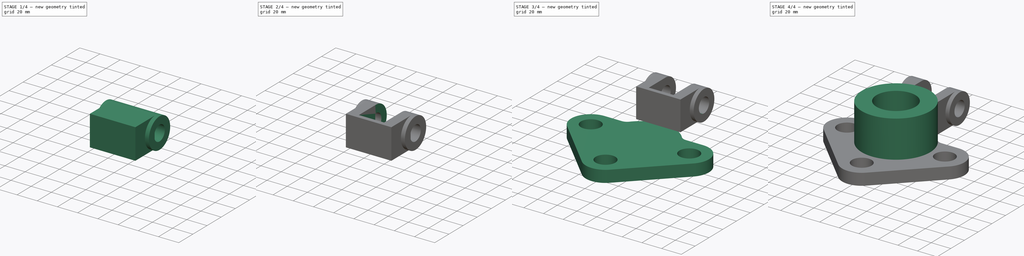
[diagram: build sequence overview — one tinted view per stage of 4, left to right]
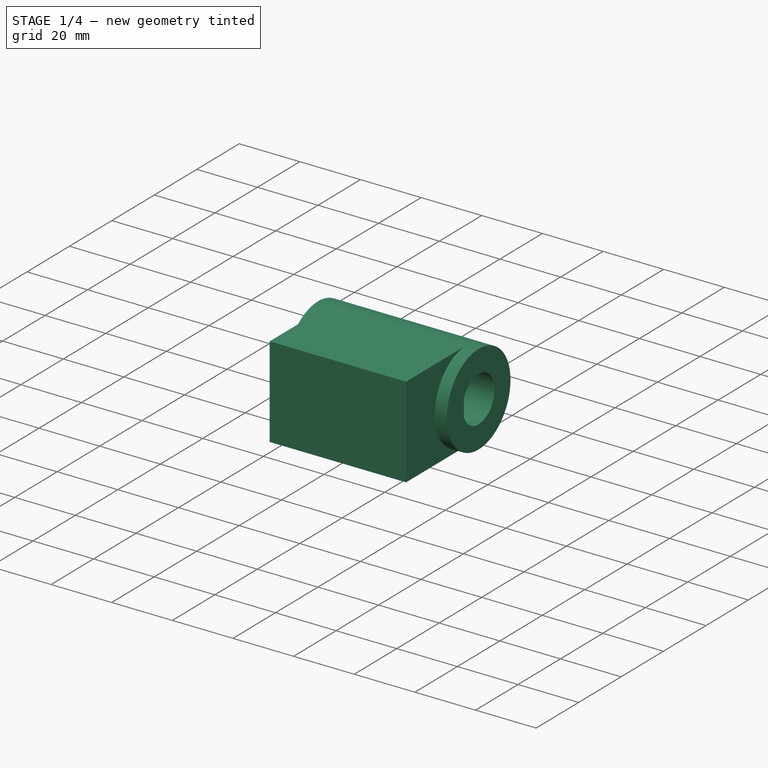
[diagram: stage 1 of 4 — iso view after this stage's code; geometry added in this stage tinted green]
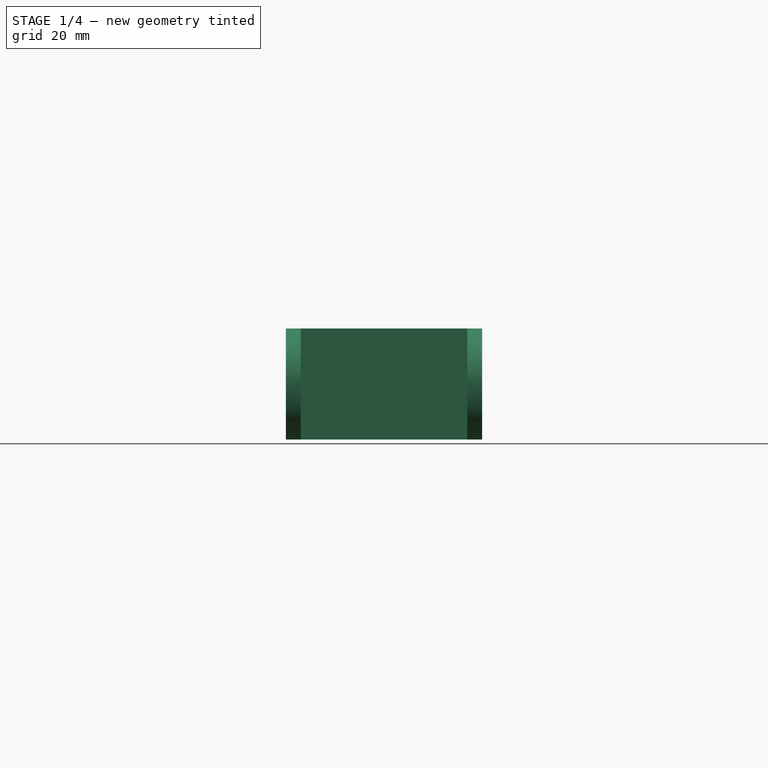
[diagram: stage 1 of 4 — front view after this stage's code; geometry added in this stage tinted green]
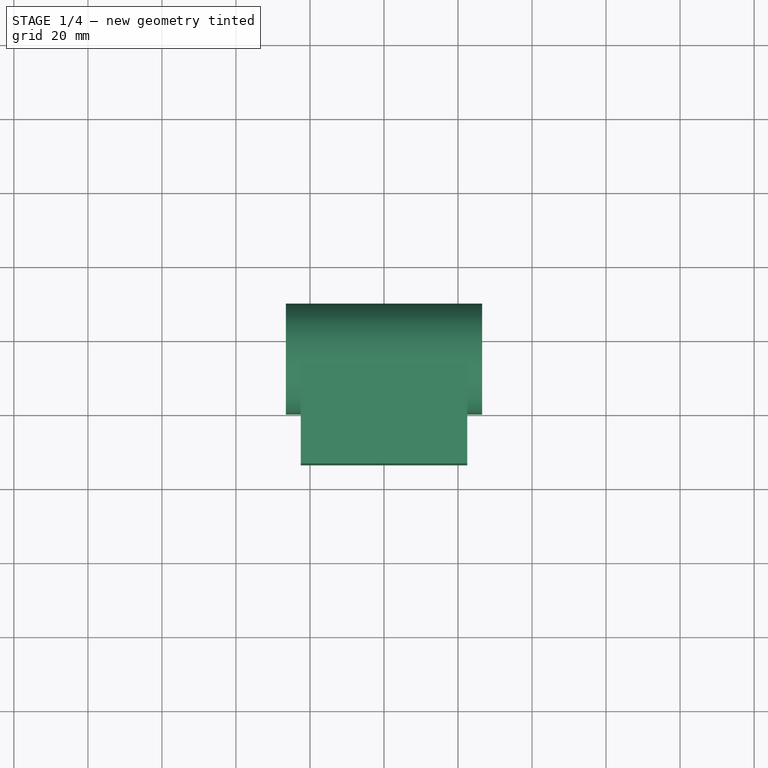
[diagram: stage 1 of 4 — top view after this stage's code; geometry added in this stage tinted green]
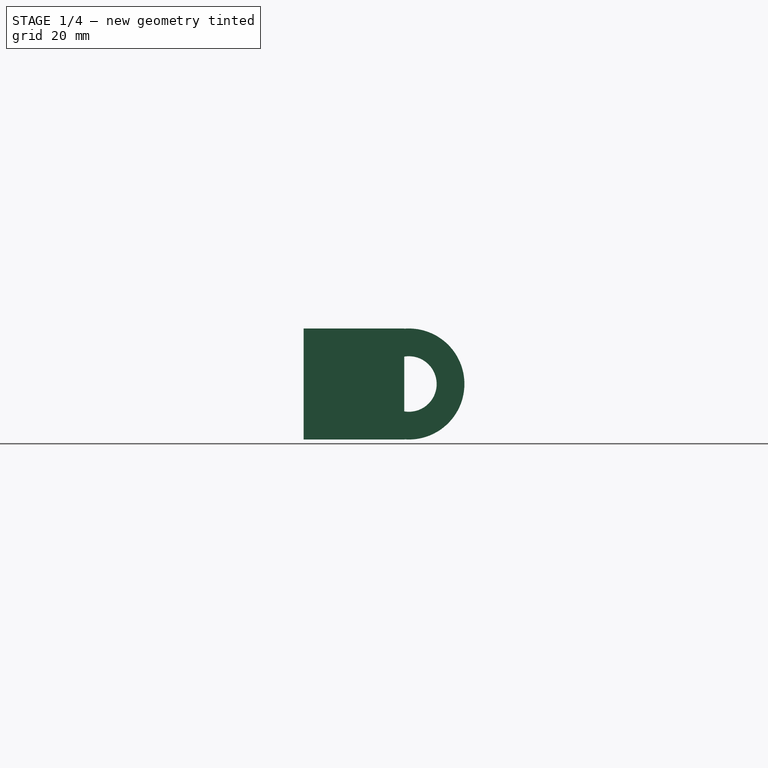
[diagram: stage 1 of 4 — right view after this stage's code; geometry added in this stage tinted green]
FCSTD DOCUMENT  (FreeCAD 0.16R6700 (Git))
Label: ejer8-2
License: All rights reserved
LicenseURL: http://en.wikipedia.org/wiki/All_rights_reserved
objects: Sketcher::SketchObject×8, PartDesign::Pad×5, PartDesign::Pocket×3, Part::MultiFuse×2, Part::Cut×1, Part::Feature×1
note: 28 computed .brp shape members not serialized (recipe doc carries the construction recipe); baked Part::Feature solids carry a one-line shape summary decoded from their .brp

FEATURE [Sketcher::SketchObject] Sketch003
  Placement = pos=(0,0,0) rot=(0.57735,0.57735,0.57735;2.0944rad)
  sketch-geometry (1):
    g0: Circle CenterX=55 CenterY=0 CenterZ=0 NormalX=0 NormalY=0 NormalZ=1 Radius=15
  constraints (3):
    c: PointOnObject(g0,g-1)
    c: DistanceX(g-1,g0) = 55
    c: Radius(g0) = 15
FEATURE [PartDesign::Pad] Pad002
  Length = 53
  Length2 = 100
  Midplane = true
  Placement = pos=(0,0,0) rot=(0.57735,0.57735,0.57735;2.0944rad)
  Sketch = -> Sketch003
  Type = 0
FEATURE [Sketcher::SketchObject] Sketch004
  Placement = pos=(0,0,0) rot=(0.57735,0.57735,0.57735;2.0944rad)
  sketch-geometry (4):
    g0: LineSegment StartX=53.7533 StartY=15 StartZ=0 EndX=26.5432 EndY=15 EndZ=0
    g1: LineSegment StartX=26.5432 StartY=15 StartZ=0 EndX=26.5432 EndY=-15 EndZ=0
    g2: LineSegment StartX=26.5432 StartY=-15 StartZ=0 EndX=53.7533 EndY=-15 EndZ=0
    g3: LineSegment StartX=53.7533 StartY=-15 StartZ=0 EndX=53.7533 EndY=15 EndZ=0
  constraints (10):
    c: Coincident(g0,g1)
    c: Coincident(g1,g2)
    c: Coincident(g2,g3)
    c: Coincident(g3,g0)
    c: Horizontal(g0)
    c: Horizontal(g2)
    c: Vertical(g1)
    c: Vertical(g3)
    c: Symmetric(g0,g1,g-1)
    c: DistanceY(g1,g1) = 30
FEATURE [PartDesign::Pad] Pad003
  Length = 45
  Length2 = 100
  Midplane = true
  Placement = pos=(0,0,0) rot=(0.57735,0.57735,0.57735;2.0944rad)
  Sketch = -> Sketch004
  Type = 0
FEATURE [Sketcher::SketchObject] Sketch005
  Placement = pos=(26.5,0,0) rot=(0.57735,0.57735,0.57735;2.0944rad)
  Support = -> Pad002 [Face3]
  sketch-geometry (1):
    g0: Circle CenterX=55 CenterY=0 CenterZ=0 NormalX=0 NormalY=0 NormalZ=1 Radius=7.5
  constraints (3):
    c: PointOnObject(g0,g-1)
    c: DistanceX(g-1,g0) = 55
    c: Radius(g0) = 7.5
FEATURE [PartDesign::Pocket] Pocket001
  Length = 5
  Placement = pos=(0,0,0) rot=(0.57735,0.57735,0.57735;2.0944rad)
  Sketch = -> Sketch005
  Type = 1
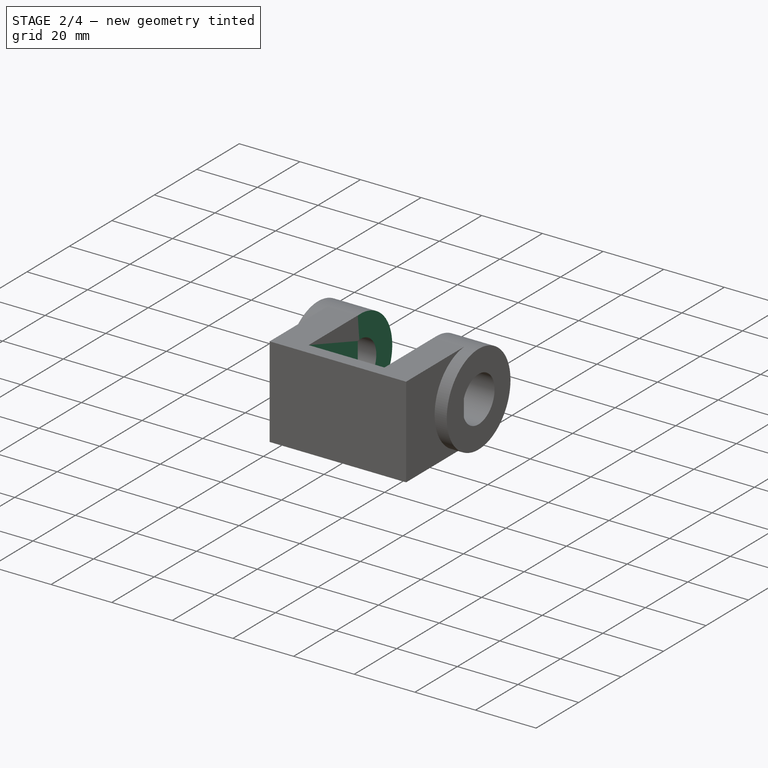
[diagram: stage 2 of 4 — iso view after this stage's code; geometry added in this stage tinted green]
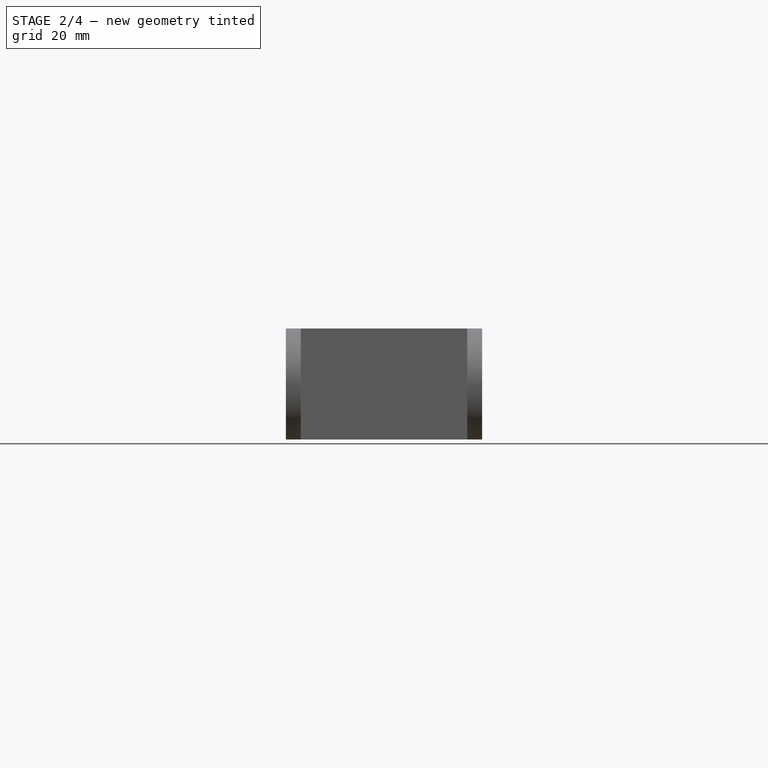
[diagram: stage 2 of 4 — front view after this stage's code; geometry added in this stage tinted green]
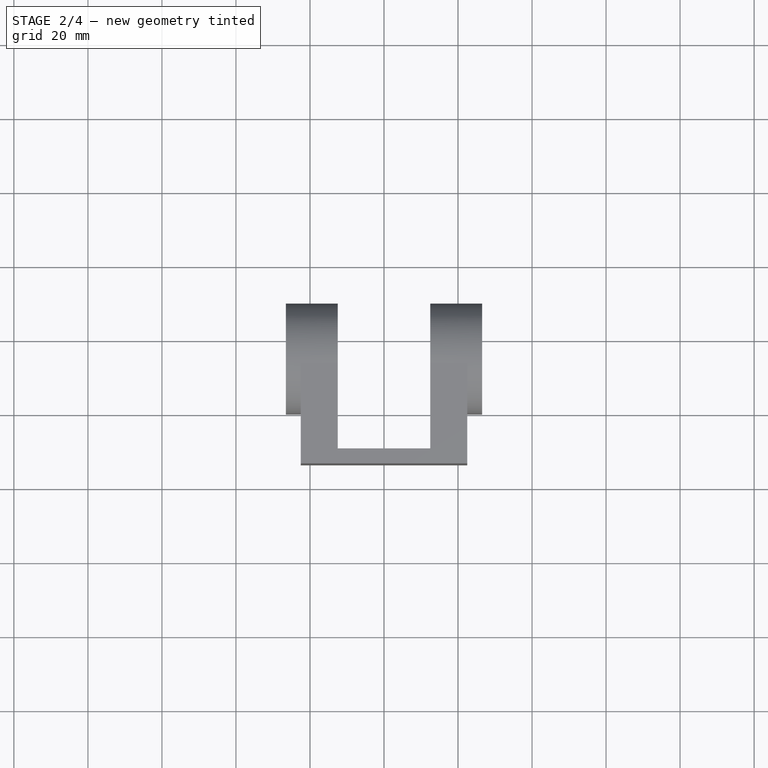
[diagram: stage 2 of 4 — top view after this stage's code; geometry added in this stage tinted green]
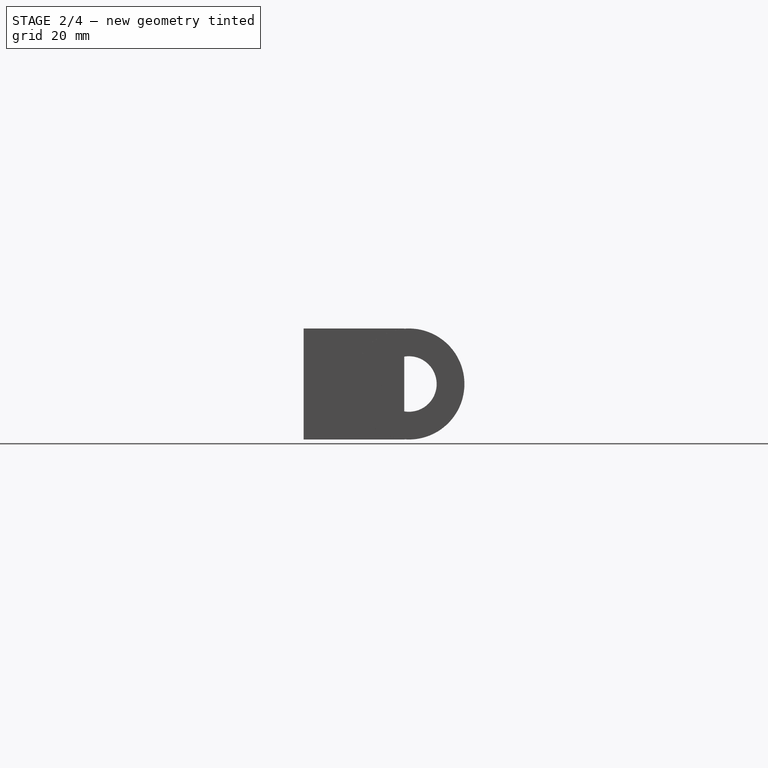
[diagram: stage 2 of 4 — right view after this stage's code; geometry added in this stage tinted green]
FEATURE [Sketcher::SketchObject] Sketch006
  sketch-geometry (4):
    g0: LineSegment StartX=-12.5 StartY=82.113 StartZ=0 EndX=12.5 EndY=82.113 EndZ=0
    g1: LineSegment StartX=12.5 StartY=82.113 StartZ=0 EndX=12.5 EndY=30.6272 EndZ=0
    g2: LineSegment StartX=12.5 StartY=30.6272 StartZ=0 EndX=-12.5 EndY=30.6272 EndZ=0
    g3: LineSegment StartX=-12.5 StartY=30.6272 StartZ=0 EndX=-12.5 EndY=82.113 EndZ=0
  constraints (10):
    c: Coincident(g0,g1)
    c: Coincident(g1,g2)
    c: Coincident(g2,g3)
    c: Coincident(g3,g0)
    c: Horizontal(g0)
    c: Horizontal(g2)
    c: Vertical(g1)
    c: Vertical(g3)
    c: Symmetric(g0,g0,g-2)
    c: DistanceX(g0,g0) = 25
FEATURE [PartDesign::Pad] Pad004
  Length = 50
  Length2 = 100
  Midplane = true
  Sketch = -> Sketch006
  Type = 0
FEATURE [Part::MultiFuse] Fusion
  Shapes = -> [Pad003,Pocket001]
FEATURE [Part::Cut] Cut
  Base = -> Fusion
  Tool = -> Pad004
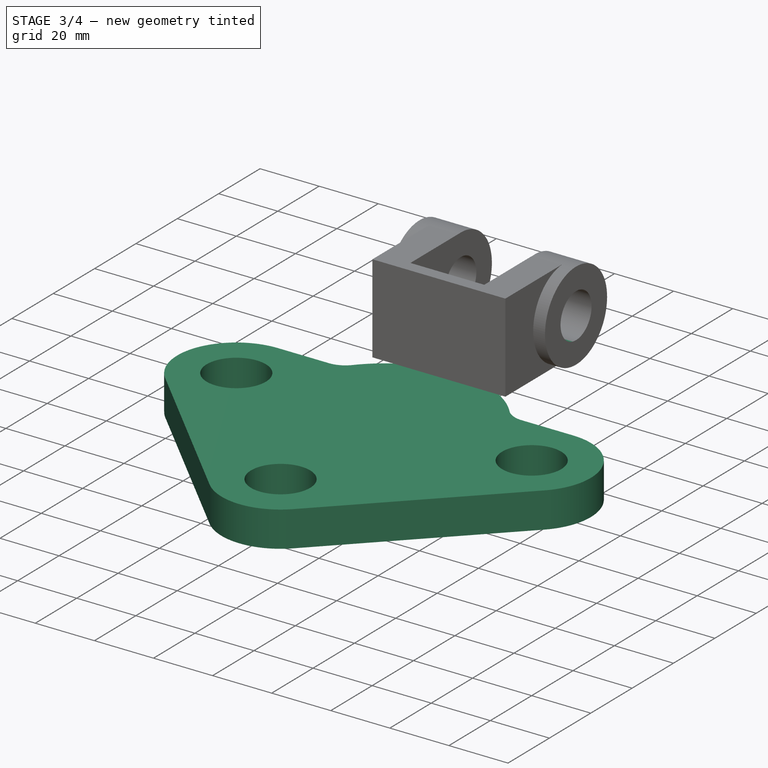
[diagram: stage 3 of 4 — iso view after this stage's code; geometry added in this stage tinted green]
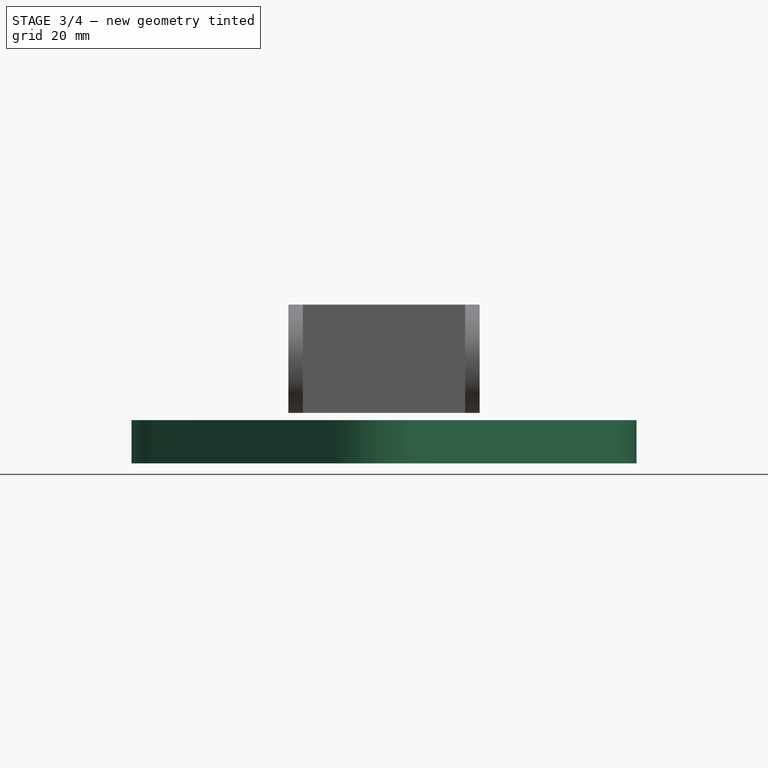
[diagram: stage 3 of 4 — front view after this stage's code; geometry added in this stage tinted green]
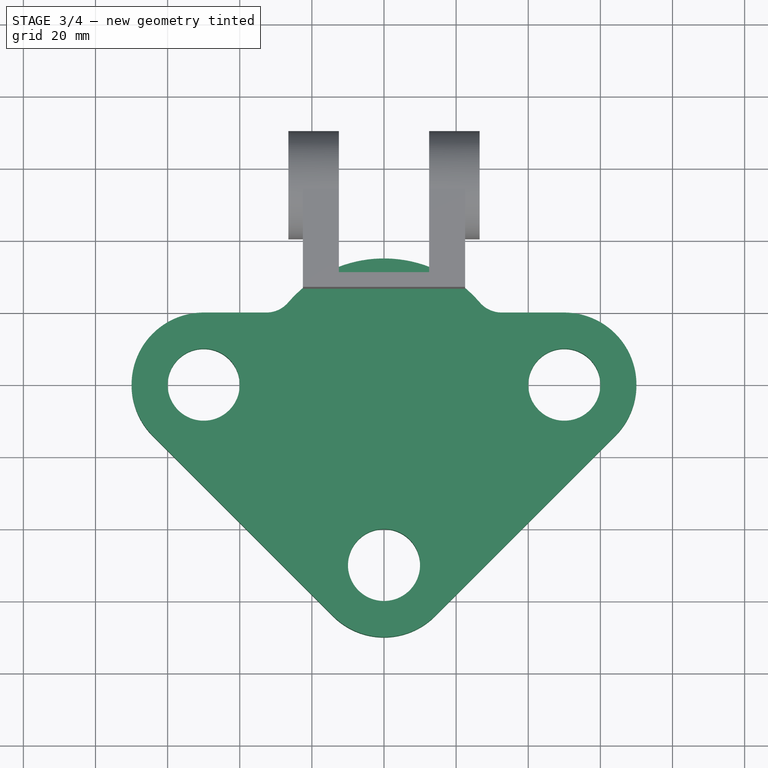
[diagram: stage 3 of 4 — top view after this stage's code; geometry added in this stage tinted green]
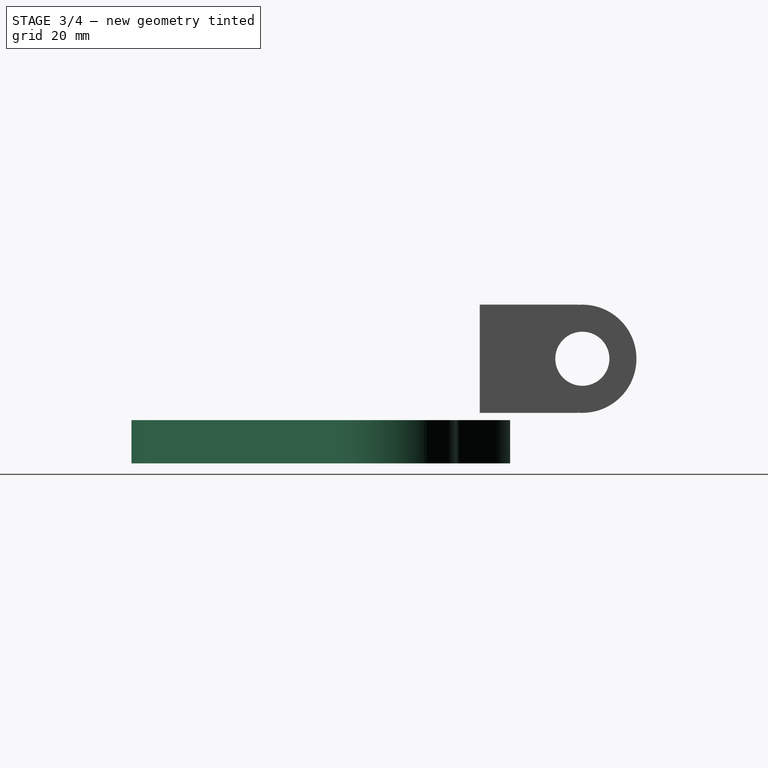
[diagram: stage 3 of 4 — right view after this stage's code; geometry added in this stage tinted green]
FEATURE [Sketcher::SketchObject] Sketch
  Placement = pos=(0,0,-17) rot=(0,0,1;0rad)
  sketch-geometry (13):
    g0: ArcOfCircle CenterX=0 CenterY=0 CenterZ=0 NormalX=0 NormalY=0 NormalZ=1 Radius=35 StartAngle=0.709116 EndAngle=2.43248
    g1: ArcOfCircle CenterX=-50 CenterY=8.65699e-06 CenterZ=0 NormalX=0 NormalY=0 NormalZ=1 Radius=20 StartAngle=1.5708 EndAngle=3.92699
    g2: ArcOfCircle CenterX=50 CenterY=5.96775e-06 CenterZ=0 NormalX=0 NormalY=0 NormalZ=1 Radius=20 StartAngle=5.49779 EndAngle=7.85398
    g3: ArcOfCircle CenterX=0 CenterY=-50 CenterZ=0 NormalX=0 NormalY=0 NormalZ=1 Radius=20 StartAngle=3.92699 EndAngle=5.49779
    g4: Circle CenterX=-50 CenterY=8.65699e-06 CenterZ=0 NormalX=0 NormalY=0 NormalZ=1 Radius=10
    g5: Circle CenterX=50 CenterY=5.96775e-06 CenterZ=0 NormalX=0 NormalY=0 NormalZ=1 Radius=10
    g6: Circle CenterX=0 CenterY=-50 CenterZ=0 NormalX=0 NormalY=0 NormalZ=1 Radius=10
    g7: LineSegment StartX=-64.1421 StartY=-14.1421 StartZ=0 EndX=-14.1421 EndY=-64.1421 EndZ=0
    g8: LineSegment StartX=14.1421 StartY=-64.1421 StartZ=0 EndX=64.1422 EndY=-14.1421 EndZ=0
    g9: LineSegment StartX=50 StartY=20 StartZ=0 EndX=32.6343 EndY=20 EndZ=0
    g10: ArcOfCircle CenterX=-32.6343 CenterY=28 CenterZ=0 NormalX=0 NormalY=0 NormalZ=1 Radius=8 StartAngle=4.71239 EndAngle=5.57407
    g11: ArcOfCircle CenterX=32.6343 CenterY=28 CenterZ=0 NormalX=0 NormalY=0 NormalZ=1 Radius=8 StartAngle=3.85071 EndAngle=4.71239
    g12: LineSegment StartX=-32.6343 StartY=20 StartZ=0 EndX=-50 EndY=20 EndZ=0
  constraints (37):
    c: Coincident(g1,g4)
    c: Coincident(g5,g2)
    c: Coincident(g3,g6)
    c: PointOnObject(g3,g-2)
    c: Radius(g0) = 35
    c: Radius(g5) = 10
    c: Equal(g5,g6)
    c: Equal(g5,g4)
    c: Radius(g1) = 20
    c: Equal(g1,g2)
    c: Equal(g1,g3)
    c: DistanceX(g1,g2) = 100
    c: DistanceY(g3,g-1) = 50
    c: Coincident(g0,g-1)
    c: Horizontal(g9)
    c: Coincident(g2,g8)
    c: Coincident(g3,g8)
    c: Coincident(g1,g7)
    c: Coincident(g1,g12)
    c: Coincident(g2,g9)
    c: Tangent(g1,g7)
    c: Tangent(g3,g7)
    c: Tangent(g3,g8)
    c: Tangent(g8,g2)
    c: Tangent(g2,g9)
    c: Coincident(g0,g11)
    c: Coincident(g9,g11)
    c: Coincident(g0,g10)
    c: Tangent(g12,g10)
    c: Horizontal(g12)
    c: Radius(g10) = 8
    c: Radius(g11) = 8
    c: Tangent(g9,g11)
    c: Tangent(g11,g0)
    c: Tangent(g12,g1)
    c: Tangent(g10,g0)
    c: Coincident(g10,g12)
FEATURE [PartDesign::Pad] Pad
  Length = 12
  Length2 = 100
  Placement = pos=(0,0,-17) rot=(0,0,1;0rad)
  Reversed = true
  Sketch = -> Sketch
  Type = 0
FEATURE [Sketcher::SketchObject] Sketch007
  Placement = pos=(26.5,0,0) rot=(0.57735,0.57735,0.57735;2.0944rad)
  Support = -> Cut [Face20]
  sketch-geometry (1):
    g0: Circle CenterX=55 CenterY=0 CenterZ=0 NormalX=0 NormalY=0 NormalZ=1 Radius=7.5
  constraints (3):
    c: Radius(g0) = 7.5
    c: PointOnObject(g0,g-1)
    c: DistanceX(g-1,g0) = 55
FEATURE [PartDesign::Pocket] Pocket002
  Length = 5
  Sketch = -> Sketch007
  Type = 1
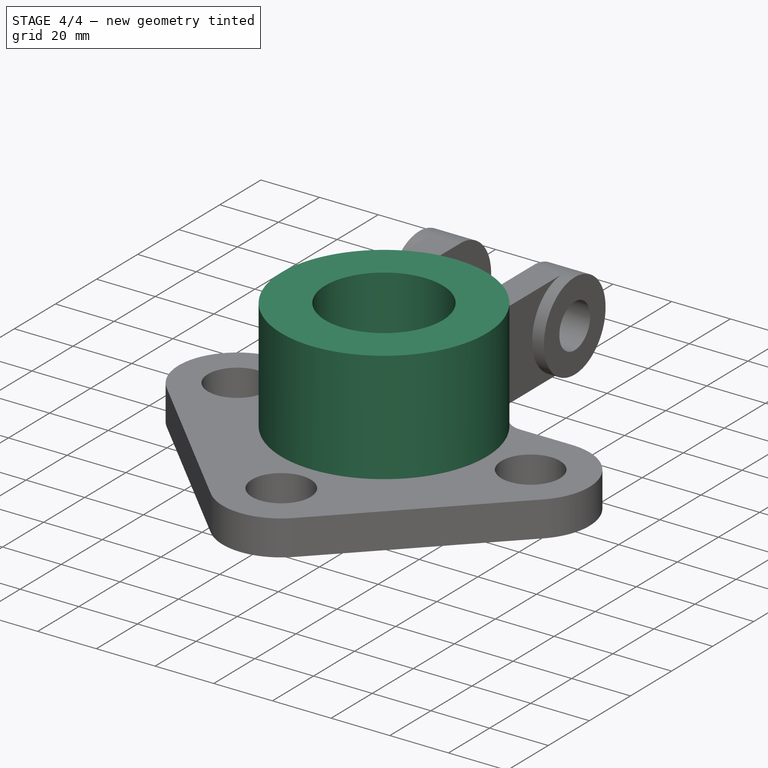
[diagram: stage 4 of 4 — iso view after this stage's code; geometry added in this stage tinted green]
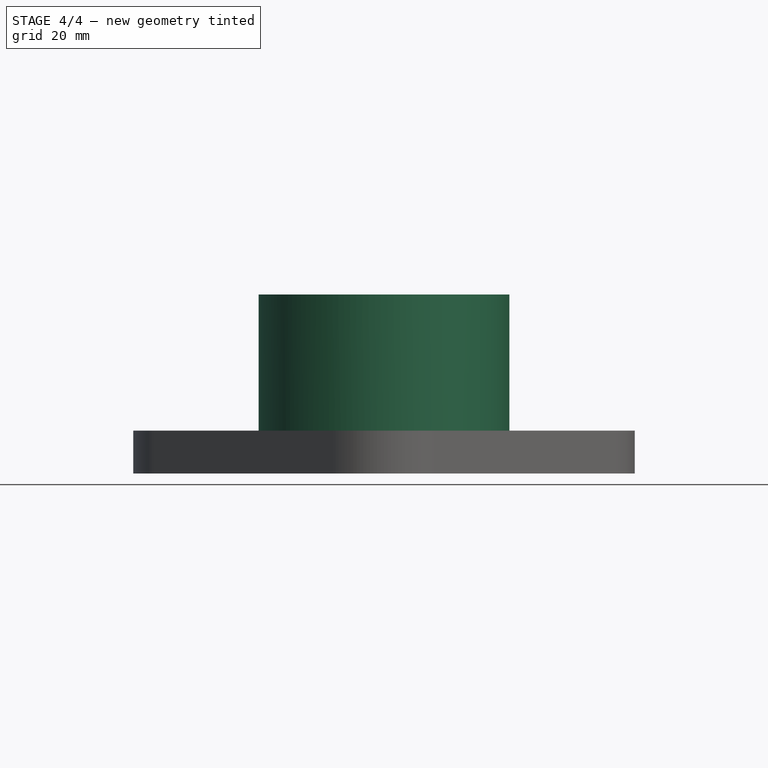
[diagram: stage 4 of 4 — front view after this stage's code; geometry added in this stage tinted green]
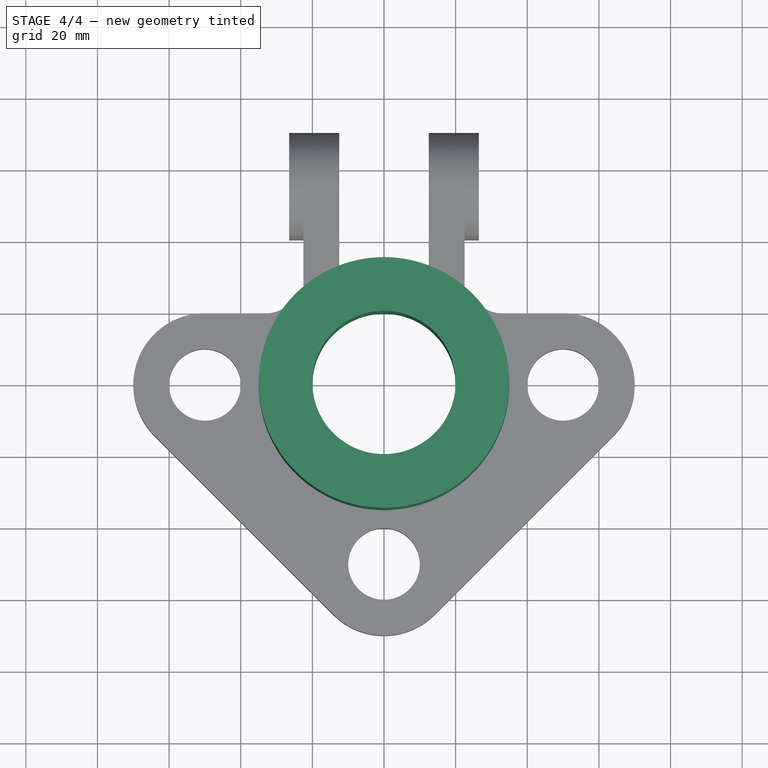
[diagram: stage 4 of 4 — top view after this stage's code; geometry added in this stage tinted green]
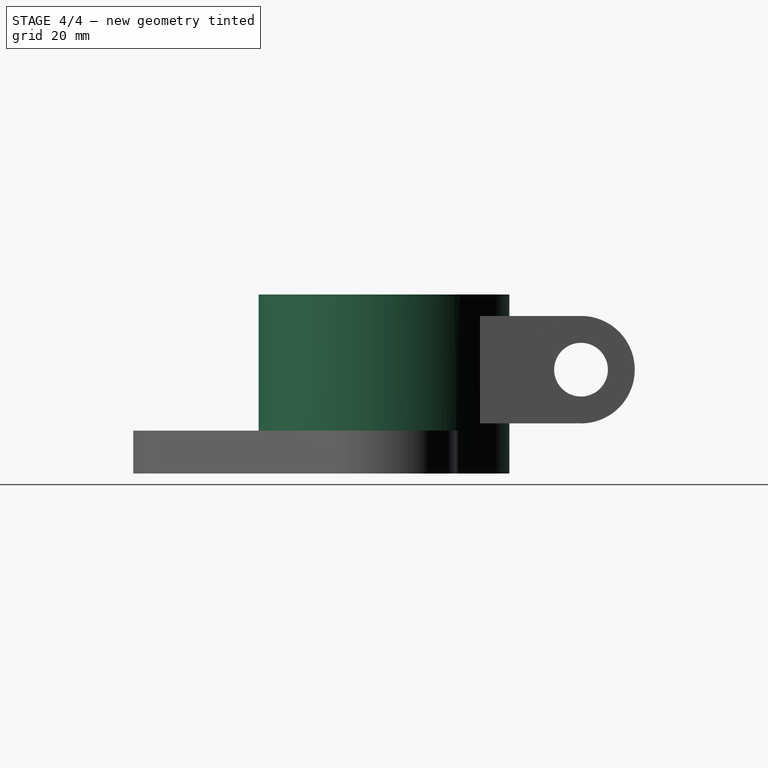
[diagram: stage 4 of 4 — right view after this stage's code; geometry added in this stage tinted green]
FEATURE [Sketcher::SketchObject] Sketch001
  Placement = pos=(0,0,-17) rot=(0,0,1;0rad)
  Support = -> Pad [Face14]
  sketch-geometry (1):
    g0: Circle CenterX=0 CenterY=0 CenterZ=0 NormalX=0 NormalY=0 NormalZ=1 Radius=35
  constraints (2):
    c: Coincident(g0,g-1)
    c: Radius(g0) = 35
FEATURE [PartDesign::Pad] Pad001
  Length = 38
  Length2 = 100
  Placement = pos=(0,0,-17) rot=(0,0,1;0rad)
  Sketch = -> Sketch001
  Type = 0
FEATURE [Sketcher::SketchObject] Sketch002
  Placement = pos=(0,0,21) rot=(0,0,1;0rad)
  Support = -> Pad001 [Face16]
  sketch-geometry (1):
    g0: Circle CenterX=0 CenterY=0 CenterZ=0 NormalX=0 NormalY=0 NormalZ=1 Radius=20
  constraints (2):
    c: Coincident(g0,g-1)
    c: Radius(g0) = 20
FEATURE [PartDesign::Pocket] Pocket
  Length = 5
  Placement = pos=(0,0,-17) rot=(0,0,1;0rad)
  Sketch = -> Sketch002
  Type = 1
FEATURE [Part::MultiFuse] Fusion001
  Shapes = -> [Pocket002,Pocket]
FEATURE [Part::Feature] Fusion001001  label="Fusion002"
  shape: bbox 140 x 140 x 50 mm, 35 faces (baked)
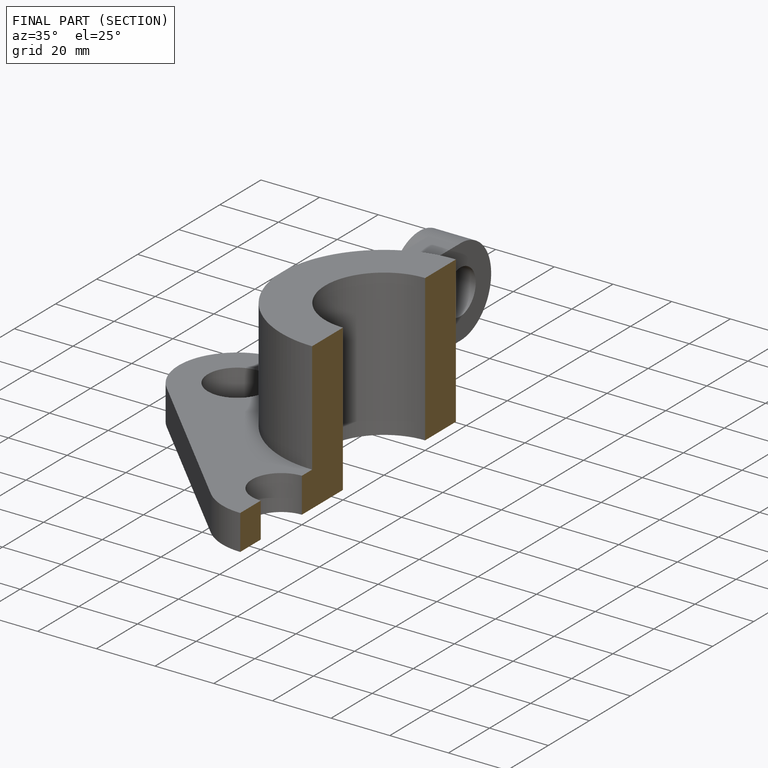
[diagram: finished part — half-section view (interior)]
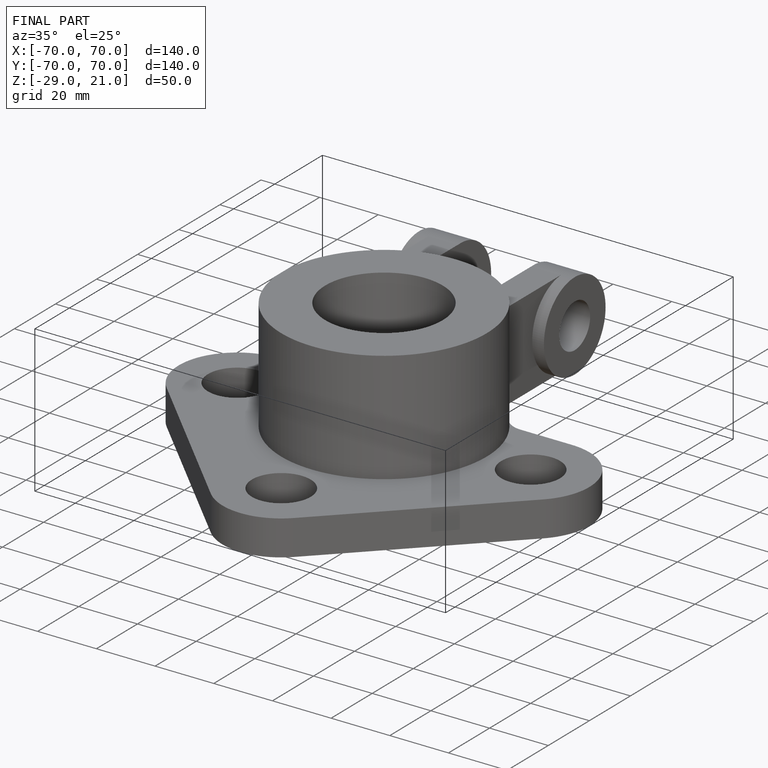
[diagram: finished part — iso view with bounding-box wireframe]
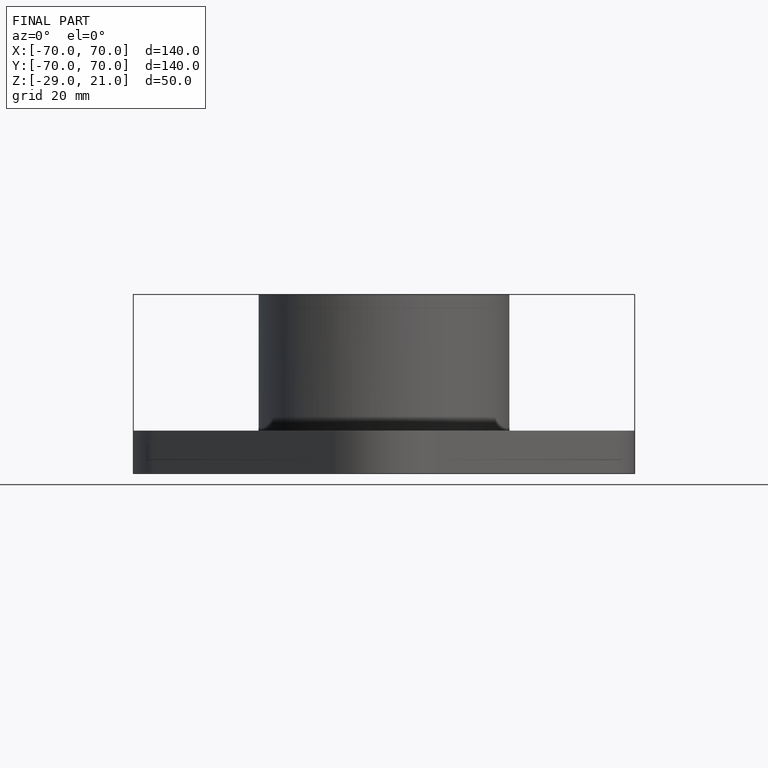
[diagram: finished part — front view with bounding-box wireframe]
